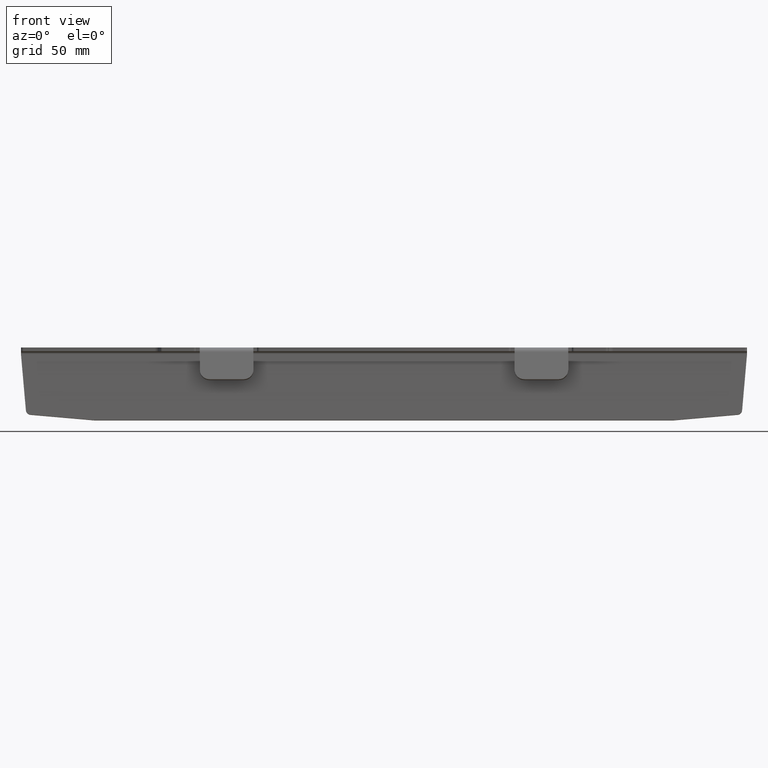
[diagram: clean part render]
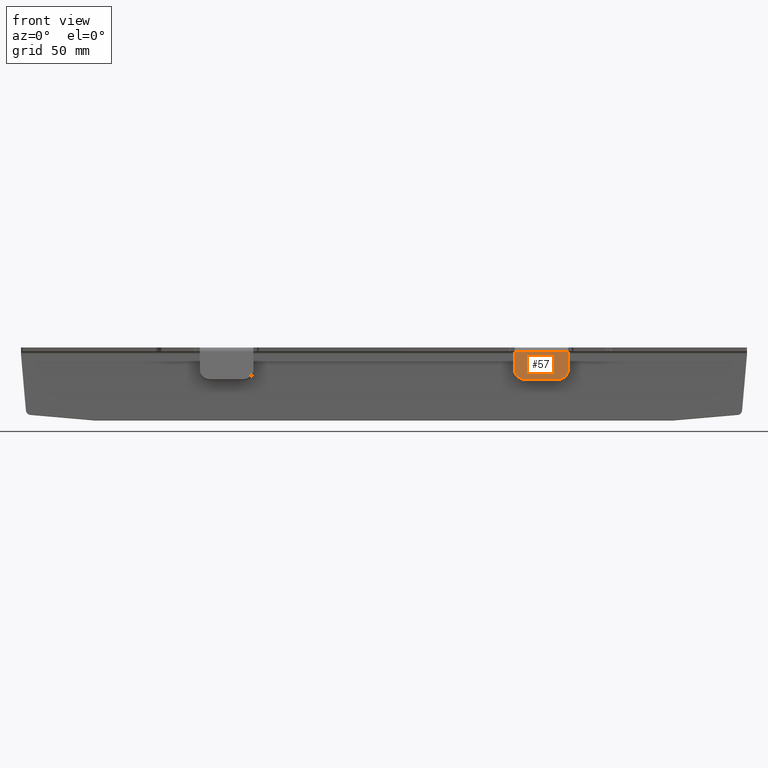
[diagram: same view with one face highlighted and labeled with its STEP entity id]
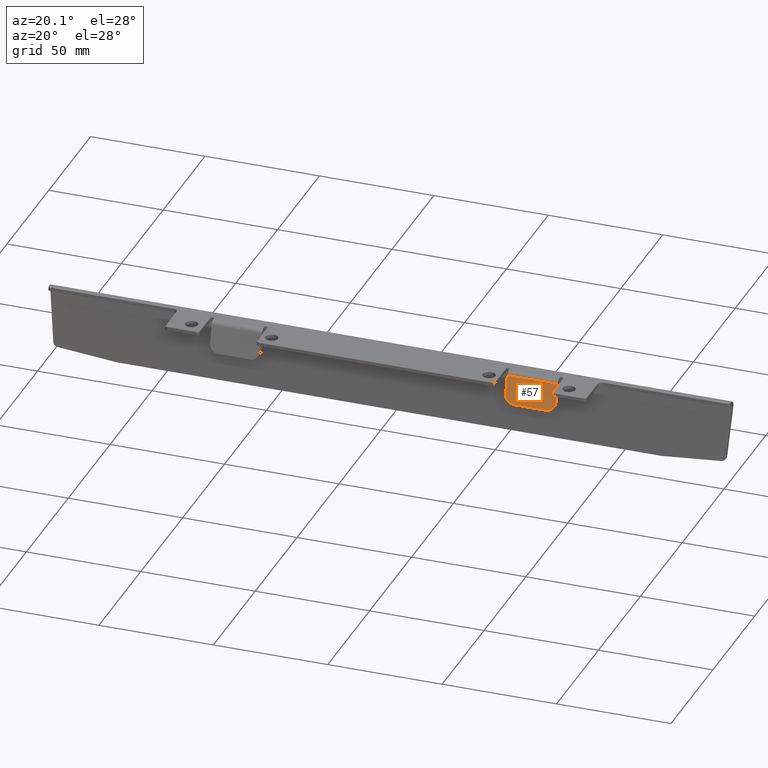
[diagram: same view with one face highlighted and labeled with its STEP entity id]
A machine part, front view. The second image highlights one B-rep face of the part: STEP entity #57.
A second angle (auxiliary view) of the same face is appended — the face is thin or edge-on in the first view.
In plain terms, the highlighted planar face has unit normal (0, 0.9659, -0.2588).
Its self-contained STEP definition (entity closure, byte-faithful):
#57 = ADVANCED_FACE ( 'NONE', ( #1301 ), #1542, .F. ) ;
#79 = CARTESIAN_POINT ( 'NONE',  ( 75.59999999999998000, 4.711569644100402200, -1.657725323723696000 ) ) ;
#144 = LINE ( 'NONE', #347, #2026 ) ;
#182 = ORIENTED_EDGE ( 'NONE', *, *, #1392, .F. ) ;
#229 = CARTESIAN_POINT ( 'NONE',  ( 0.0000000000000000000, 4.772523559025623600, -1.430242216302544100 ) ) ;
#240 = ORIENTED_EDGE ( 'NONE', *, *, #1833, .T. ) ;
#261 = CARTESIAN_POINT ( 'NONE',  ( 75.59999999999998000, 4.711569644100403100, -1.657725323723692900 ) ) ;
#275 = DIRECTION ( 'NONE',  ( 0.0000000000000000000, -0.2588190451025247400, -0.9659258262890672000 ) ) ;
#302 = AXIS2_PLACEMENT_3D ( 'NONE', #229, #2108, #625 ) ;
#347 = CARTESIAN_POINT ( 'NONE',  ( 0.0000000000000000000, 1.674383293638576300, -12.99265909570173800 ) ) ;
#381 = CARTESIAN_POINT ( 'NONE',  ( 53.59999999999999400, 2.709659474048675200, -9.128955790545470400 ) ) ;
#392 = CARTESIAN_POINT ( 'NONE',  ( 75.59999999999998000, 4.772523559025623600, -1.430242216302544100 ) ) ;
#446 = CARTESIAN_POINT ( 'NONE',  ( 71.59999999999998000, 2.709659474048675200, -9.128955790545470400 ) ) ;
#550 = EDGE_CURVE ( 'NONE', #1921, #1150, #1075, .T. ) ;
#552 = VECTOR ( 'NONE', #275, 1000.000000000000100 ) ;
#625 = DIRECTION ( 'NONE',  ( 0.0000000000000000000, 0.2588190451025247400, 0.9659258262890672000 ) ) ;
#649 = DIRECTION ( 'NONE',  ( 0.0000000000000000000, 0.2588190451025246300, 0.9659258262890672000 ) ) ;
#730 = VERTEX_POINT ( 'NONE', #2060 ) ;
#747 = VECTOR ( 'NONE', #821, 1000.000000000000000 ) ;
#813 = CARTESIAN_POINT ( 'NONE',  ( 57.60000000000000100, 2.709659474048675200, -9.128955790545470400 ) ) ;
#821 = DIRECTION ( 'NONE',  ( 1.000000000000000000, -0.0000000000000000000, -0.0000000000000000000 ) ) ;
#1007 = CARTESIAN_POINT ( 'NONE',  ( 57.60000000000000100, 1.674383293638576300, -12.99265909570173800 ) ) ;
#1075 = LINE ( 'NONE', #1202, #552 ) ;
#1150 = VERTEX_POINT ( 'NONE', #381 ) ;
#1164 = DIRECTION ( 'NONE',  ( 0.0000000000000000000, 0.2588190451025246300, 0.9659258262890672000 ) ) ;
#1167 = EDGE_CURVE ( 'NONE', #1398, #2323, #1880, .T. ) ;
#1202 = CARTESIAN_POINT ( 'NONE',  ( 53.59999999999999400, 4.772523559025623600, -1.430242216302544100 ) ) ;
#1301 = FACE_OUTER_BOUND ( 'NONE', #1461, .T. ) ;
#1330 = DIRECTION ( 'NONE',  ( 0.0000000000000000000, 0.2588190451025247400, 0.9659258262890672000 ) ) ;
#1380 = VECTOR ( 'NONE', #1330, 1000.000000000000100 ) ;
#1392 = EDGE_CURVE ( 'NONE', #1921, #2323, #2237, .T. ) ;
#1398 = VERTEX_POINT ( 'NONE', #1780 ) ;
#1460 = EDGE_CURVE ( 'NONE', #1150, #2307, #1939, .T. ) ;
#1461 = EDGE_LOOP ( 'NONE', ( #240, #1720, #1960, #182, #1859, #2046 ) ) ;
#1486 = CARTESIAN_POINT ( 'NONE',  ( 53.59999999999999400, 4.711569644100404000, -1.657725323723692900 ) ) ;
#1491 = DIRECTION ( 'NONE',  ( 1.000000000000000000, -0.0000000000000000000, 0.0000000000000000000 ) ) ;
#1542 = PLANE ( 'NONE',  #302 ) ;
#1550 = DIRECTION ( 'NONE',  ( -0.0000000000000000000, -0.9659258262890673100, 0.2588190451025247400 ) ) ;
#1720 = ORIENTED_EDGE ( 'NONE', *, *, #2111, .T. ) ;
#1780 = CARTESIAN_POINT ( 'NONE',  ( 75.59999999999998000, 2.709659474048675200, -9.128955790545470400 ) ) ;
#1791 = CIRCLE ( 'NONE', #2163, 4.000000000000000900 ) ;
#1833 = EDGE_CURVE ( 'NONE', #2307, #730, #144, .T. ) ;
#1859 = ORIENTED_EDGE ( 'NONE', *, *, #550, .T. ) ;
#1880 = LINE ( 'NONE', #392, #1380 ) ;
#1921 = VERTEX_POINT ( 'NONE', #1486 ) ;
#1939 = CIRCLE ( 'NONE', #2441, 4.000000000000000900 ) ;
#1960 = ORIENTED_EDGE ( 'NONE', *, *, #1167, .T. ) ;
#2026 = VECTOR ( 'NONE', #1491, 1000.000000000000000 ) ;
#2046 = ORIENTED_EDGE ( 'NONE', *, *, #1460, .T. ) ;
#2060 = CARTESIAN_POINT ( 'NONE',  ( 71.59999999999998000, 1.674383293638576300, -12.99265909570173800 ) ) ;
#2108 = DIRECTION ( 'NONE',  ( 0.0000000000000000000, 0.9659258262890673100, -0.2588190451025247900 ) ) ;
#2111 = EDGE_CURVE ( 'NONE', #730, #1398, #1791, .T. ) ;
#2163 = AXIS2_PLACEMENT_3D ( 'NONE', #446, #1550, #1164 ) ;
#2237 = LINE ( 'NONE', #261, #747 ) ;
#2307 = VERTEX_POINT ( 'NONE', #1007 ) ;
#2310 = DIRECTION ( 'NONE',  ( -0.0000000000000000000, -0.9659258262890673100, 0.2588190451025247400 ) ) ;
#2323 = VERTEX_POINT ( 'NONE', #79 ) ;
#2441 = AXIS2_PLACEMENT_3D ( 'NONE', #813, #2310, #649 ) ;